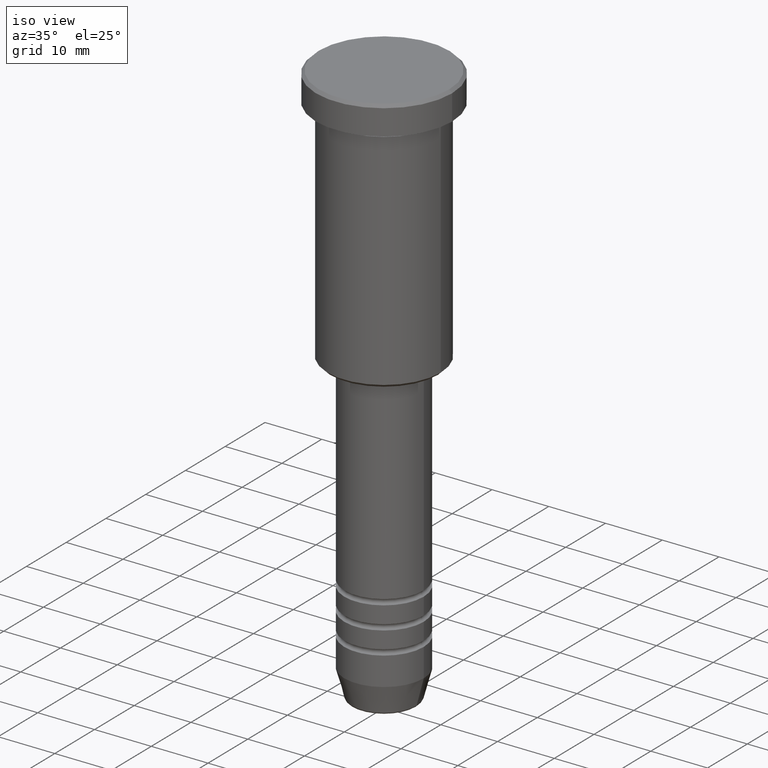
[diagram: clean part render]
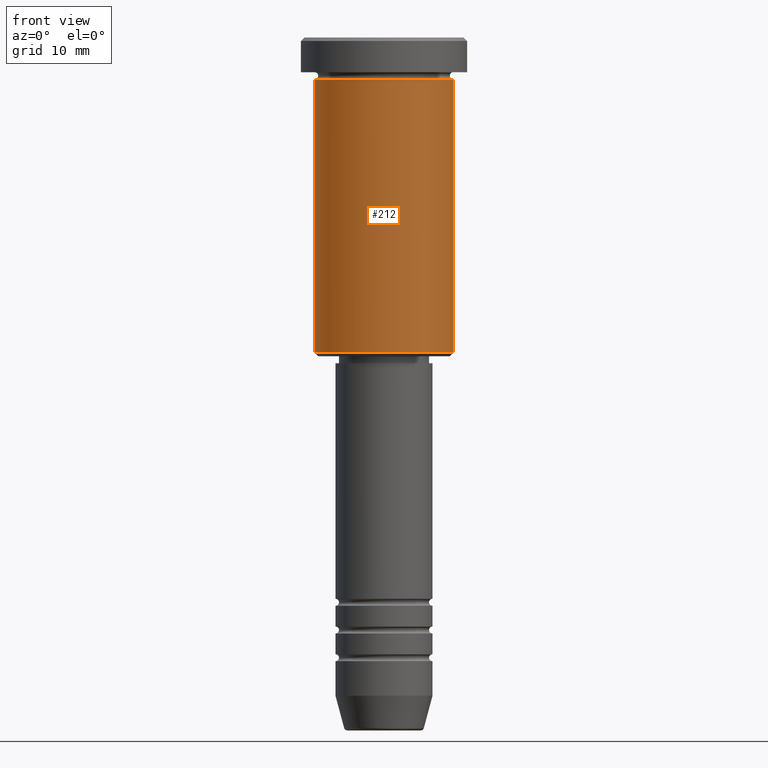
[diagram: tour spotlight — one face highlighted and labeled with its STEP entity id]
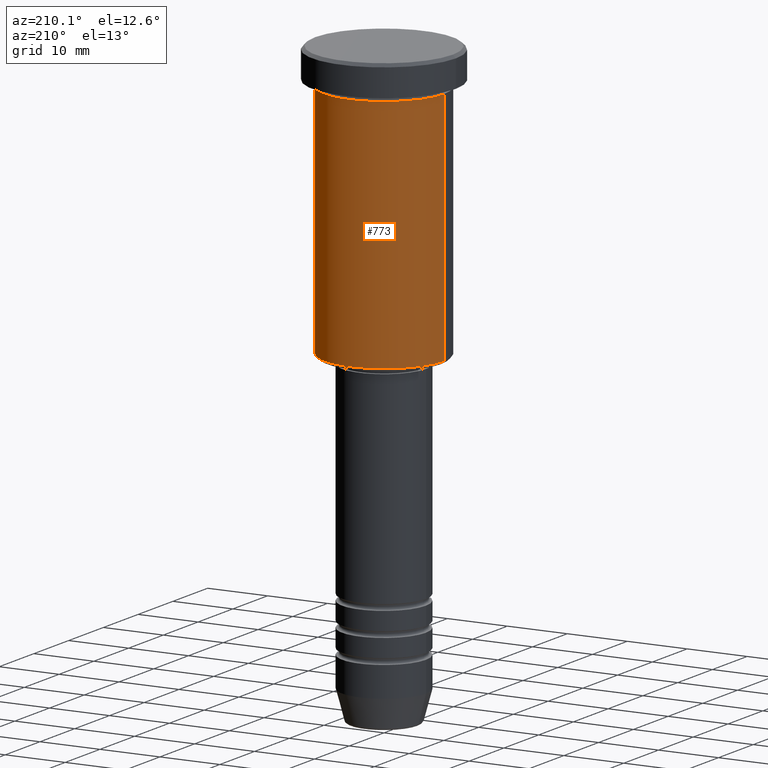
[diagram: tour spotlight — one face highlighted and labeled with its STEP entity id]
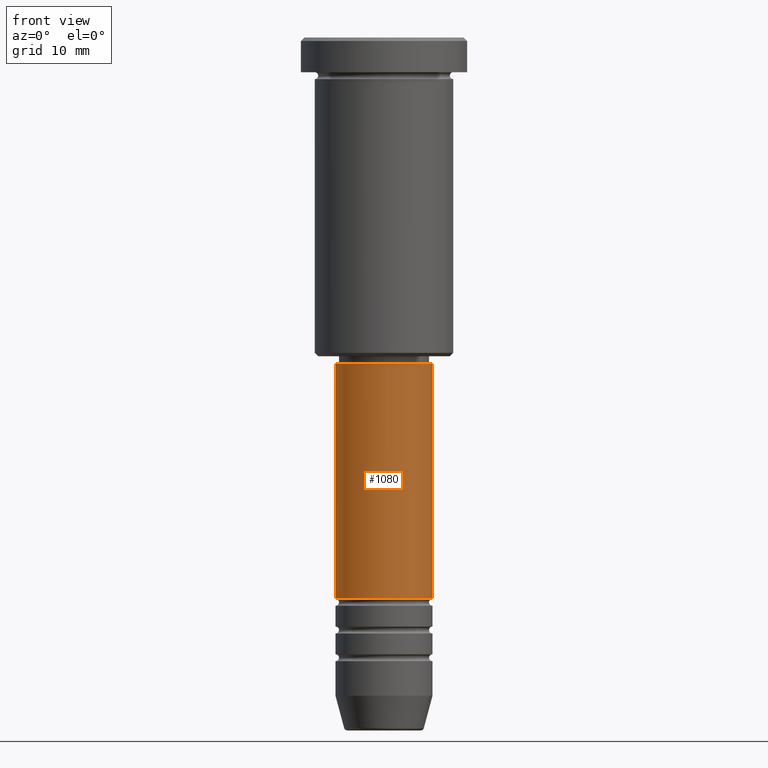
[diagram: tour spotlight — one face highlighted and labeled with its STEP entity id]
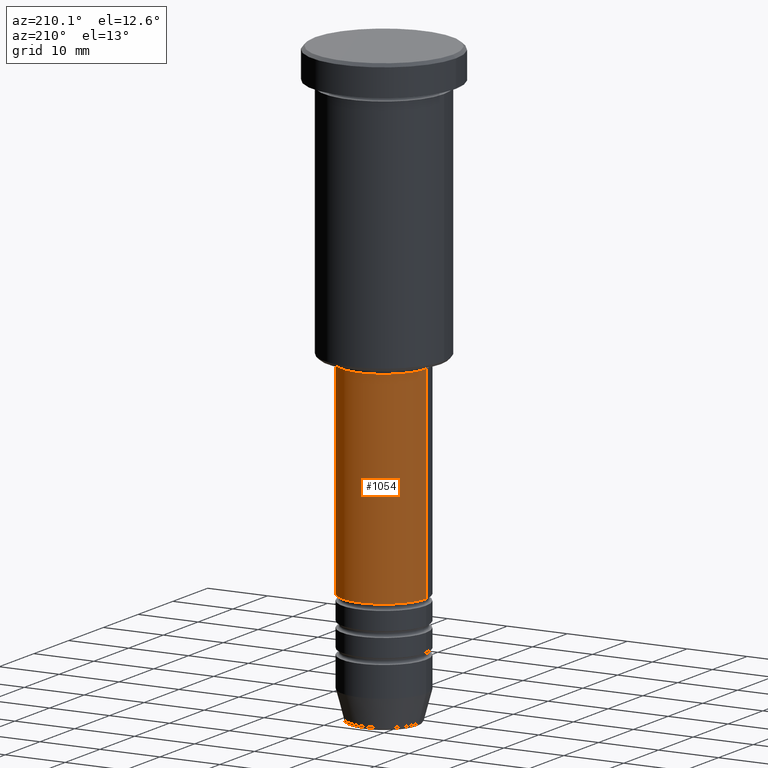
[diagram: tour spotlight — one face highlighted and labeled with its STEP entity id]
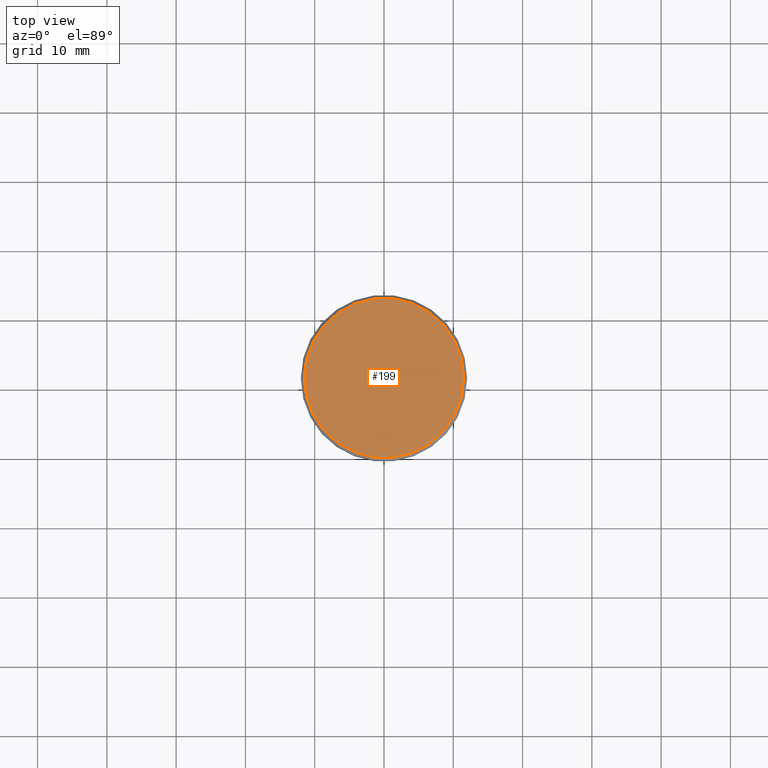
[diagram: tour spotlight — one face highlighted and labeled with its STEP entity id]
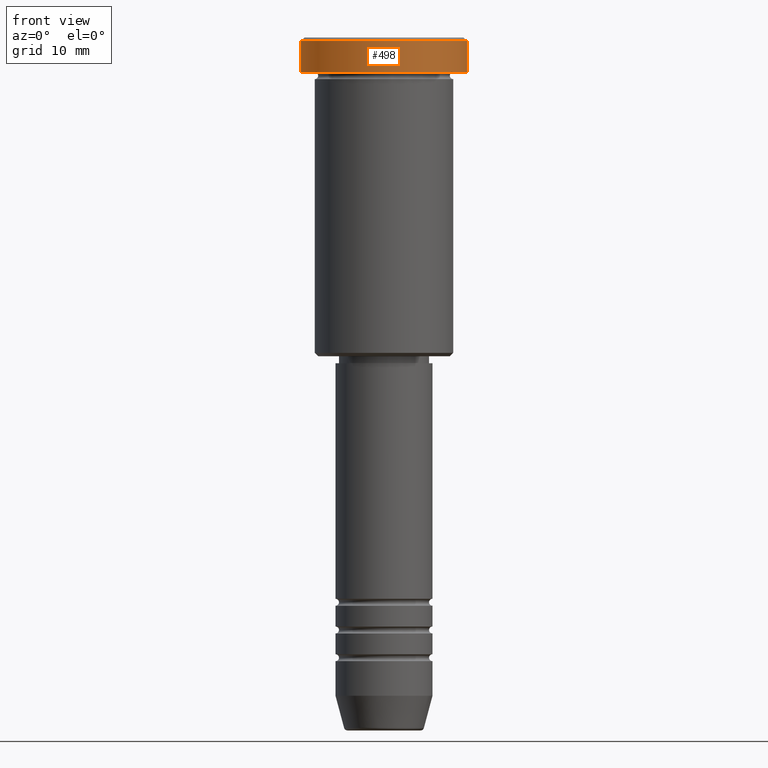
[diagram: tour spotlight — one face highlighted and labeled with its STEP entity id]
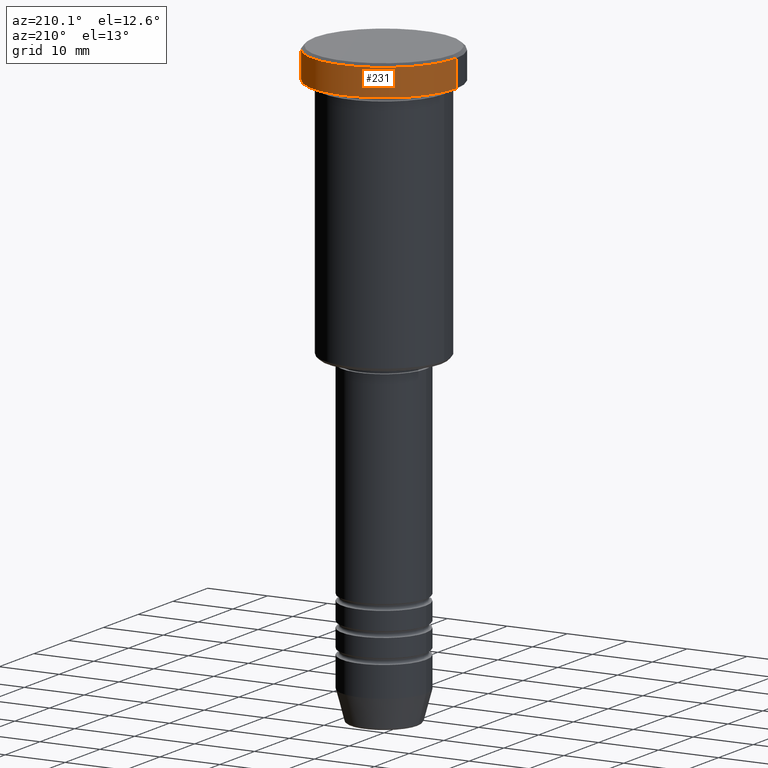
[diagram: tour spotlight — one face highlighted and labeled with its STEP entity id]
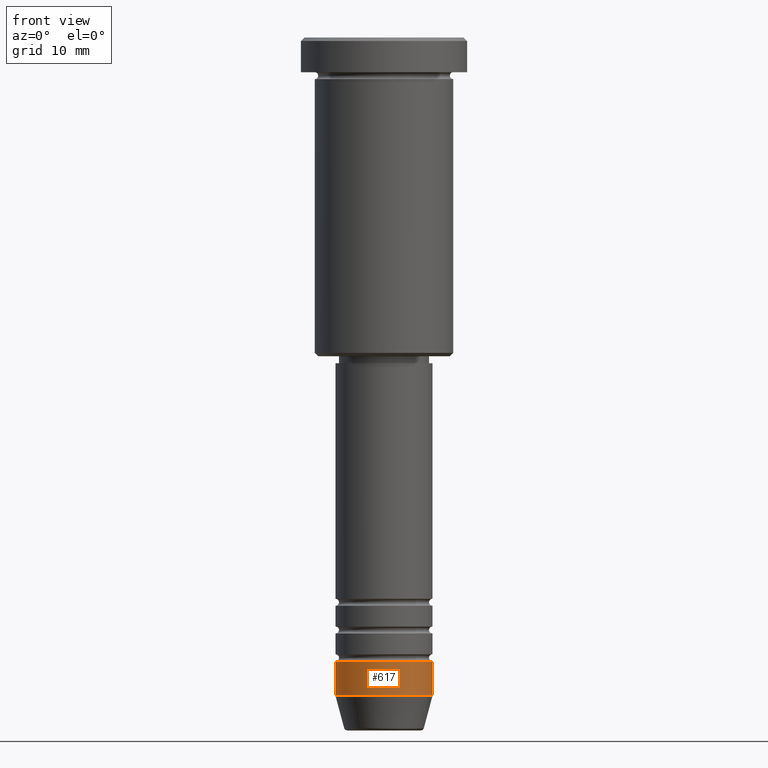
[diagram: tour spotlight — one face highlighted and labeled with its STEP entity id]
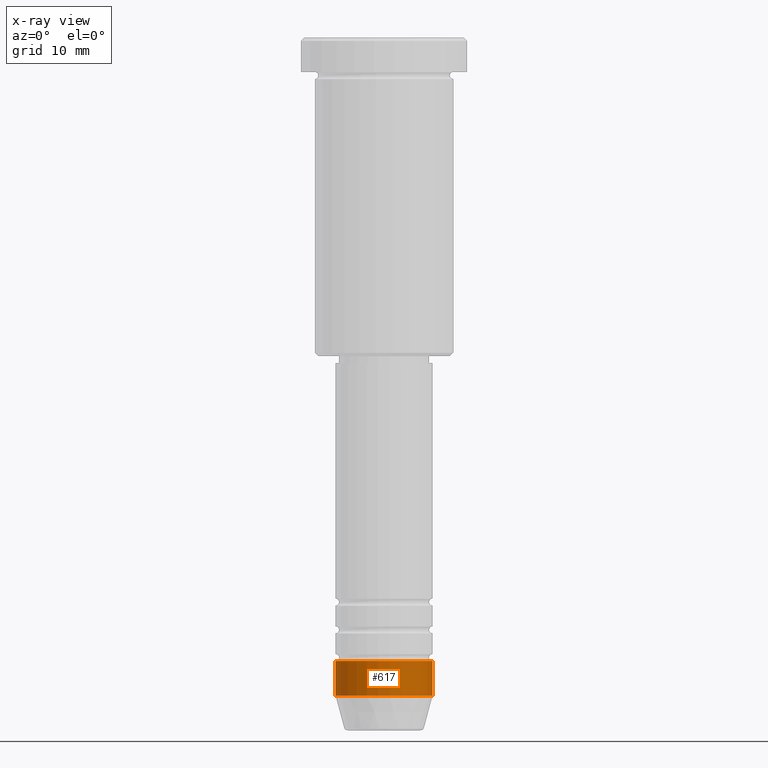
[diagram: x-ray of the same camera — body ghosted, this tour face saturated]
A machine part: a face-by-face anatomy tour. The part has 43 B-rep faces; the first image is the clean iso view, then the 8 largest visible faces are spotlighted one at a time (largest first), each with its STEP entity span.

Face 1 — front view, entity #212. In plain terms, the highlighted cylindrical surface (partial cylindrical patch) has radius 10 mm, axis along (-0, -0, 1).
Definition (entity closure, byte-faithful):
#6 = EDGE_CURVE ( 'NONE', #790, #1040, #321, .T. ) ;
#57 = CIRCLE ( 'NONE', #799, 9.999999999999998224 ) ;
#97 = DIRECTION ( 'NONE',  ( 1.000000000000000000, 0.000000000000000000, 0.000000000000000000 ) ) ;
#103 = AXIS2_PLACEMENT_3D ( 'NONE', #579, #650, #97 ) ;
#147 = VECTOR ( 'NONE', #226, 1000.000000000000000 ) ;
#180 = VERTEX_POINT ( 'NONE', #624 ) ;
#212 = ADVANCED_FACE ( 'NONE', ( #1141 ), #229, .T. ) ;
#226 = DIRECTION ( 'NONE',  ( -0.000000000000000000, -0.000000000000000000, 1.000000000000000000 ) ) ;
#229 = CYLINDRICAL_SURFACE ( 'NONE', #910, 9.999999999999998224 ) ;
#263 = CARTESIAN_POINT ( 'NONE',  ( -10.00000000000000000, 1.224646799147353256E-15, -6.000000000000000000 ) ) ;
#304 = CARTESIAN_POINT ( 'NONE',  ( -9.999999999999998224, 1.224646799147353059E-15, -45.49999999999998579 ) ) ;
#319 = VECTOR ( 'NONE', #530, 1000.000000000000000 ) ;
#321 = LINE ( 'NONE', #327, #147 ) ;
#327 = CARTESIAN_POINT ( 'NONE',  ( -9.999999999999998224, 1.224646799147353059E-15, 0.000000000000000000 ) ) ;
#350 = DIRECTION ( 'NONE',  ( -1.000000000000000000, 0.000000000000000000, 0.000000000000000000 ) ) ;
#385 = ORIENTED_EDGE ( 'NONE', *, *, #584, .F. ) ;
#399 = CARTESIAN_POINT ( 'NONE',  ( 0.000000000000000000, 0.000000000000000000, 0.000000000000000000 ) ) ;
#408 = VERTEX_POINT ( 'NONE', #890 ) ;
#422 = DIRECTION ( 'NONE',  ( -0.000000000000000000, -0.000000000000000000, 1.000000000000000000 ) ) ;
#424 = ORIENTED_EDGE ( 'NONE', *, *, #957, .T. ) ;
#524 = EDGE_LOOP ( 'NONE', ( #555, #424, #639, #385 ) ) ;
#525 = LINE ( 'NONE', #713, #319 ) ;
#530 = DIRECTION ( 'NONE',  ( -0.000000000000000000, -0.000000000000000000, 1.000000000000000000 ) ) ;
#532 = DIRECTION ( 'NONE',  ( -0.000000000000000000, -0.000000000000000000, 1.000000000000000000 ) ) ;
#555 = ORIENTED_EDGE ( 'NONE', *, *, #6, .F. ) ;
#579 = CARTESIAN_POINT ( 'NONE',  ( 0.000000000000000000, 0.000000000000000000, -6.000000000000000000 ) ) ;
#584 = EDGE_CURVE ( 'NONE', #1040, #408, #1047, .T. ) ;
#624 = CARTESIAN_POINT ( 'NONE',  ( 9.999999999999998224, 0.000000000000000000, -45.49999999999998579 ) ) ;
#639 = ORIENTED_EDGE ( 'NONE', *, *, #1037, .T. ) ;
#650 = DIRECTION ( 'NONE',  ( -0.000000000000000000, -0.000000000000000000, 1.000000000000000000 ) ) ;
#713 = CARTESIAN_POINT ( 'NONE',  ( 9.999999999999998224, 0.000000000000000000, 0.000000000000000000 ) ) ;
#790 = VERTEX_POINT ( 'NONE', #304 ) ;
#799 = AXIS2_PLACEMENT_3D ( 'NONE', #903, #532, #350 ) ;
#870 = DIRECTION ( 'NONE',  ( 1.000000000000000000, 0.000000000000000000, 0.000000000000000000 ) ) ;
#890 = CARTESIAN_POINT ( 'NONE',  ( 10.00000000000000000, 0.000000000000000000, -6.000000000000000000 ) ) ;
#903 = CARTESIAN_POINT ( 'NONE',  ( 0.000000000000000000, 0.000000000000000000, -45.49999999999998579 ) ) ;
#910 = AXIS2_PLACEMENT_3D ( 'NONE', #399, #422, #870 ) ;
#957 = EDGE_CURVE ( 'NONE', #790, #180, #57, .T. ) ;
#1037 = EDGE_CURVE ( 'NONE', #180, #408, #525, .T. ) ;
#1040 = VERTEX_POINT ( 'NONE', #263 ) ;
#1047 = CIRCLE ( 'NONE', #103, 10.00000000000000000 ) ;
#1141 = FACE_OUTER_BOUND ( 'NONE', #524, .T. ) ;

Face 2 — auxiliary view, entity #773. In plain terms, the highlighted cylindrical surface (partial cylindrical patch) has radius 10 mm, axis along (-0, -0, 1).
Definition (entity closure, byte-faithful):
#6 = EDGE_CURVE ( 'NONE', #790, #1040, #321, .T. ) ;
#42 = CIRCLE ( 'NONE', #1126, 9.999999999999998224 ) ;
#134 = CIRCLE ( 'NONE', #818, 10.00000000000000000 ) ;
#147 = VECTOR ( 'NONE', #226, 1000.000000000000000 ) ;
#180 = VERTEX_POINT ( 'NONE', #624 ) ;
#226 = DIRECTION ( 'NONE',  ( -0.000000000000000000, -0.000000000000000000, 1.000000000000000000 ) ) ;
#247 = ORIENTED_EDGE ( 'NONE', *, *, #1037, .F. ) ;
#263 = CARTESIAN_POINT ( 'NONE',  ( -10.00000000000000000, 1.224646799147353256E-15, -6.000000000000000000 ) ) ;
#265 = ORIENTED_EDGE ( 'NONE', *, *, #964, .T. ) ;
#281 = CARTESIAN_POINT ( 'NONE',  ( 0.000000000000000000, 0.000000000000000000, -45.49999999999998579 ) ) ;
#304 = CARTESIAN_POINT ( 'NONE',  ( -9.999999999999998224, 1.224646799147353059E-15, -45.49999999999998579 ) ) ;
#319 = VECTOR ( 'NONE', #530, 1000.000000000000000 ) ;
#321 = LINE ( 'NONE', #327, #147 ) ;
#327 = CARTESIAN_POINT ( 'NONE',  ( -9.999999999999998224, 1.224646799147353059E-15, 0.000000000000000000 ) ) ;
#331 = DIRECTION ( 'NONE',  ( -1.000000000000000000, 0.000000000000000000, 0.000000000000000000 ) ) ;
#408 = VERTEX_POINT ( 'NONE', #890 ) ;
#441 = FACE_OUTER_BOUND ( 'NONE', #722, .T. ) ;
#494 = EDGE_CURVE ( 'NONE', #408, #1040, #134, .T. ) ;
#525 = LINE ( 'NONE', #713, #319 ) ;
#530 = DIRECTION ( 'NONE',  ( -0.000000000000000000, -0.000000000000000000, 1.000000000000000000 ) ) ;
#544 = CYLINDRICAL_SURFACE ( 'NONE', #841, 9.999999999999998224 ) ;
#571 = CARTESIAN_POINT ( 'NONE',  ( 0.000000000000000000, 0.000000000000000000, -6.000000000000000000 ) ) ;
#624 = CARTESIAN_POINT ( 'NONE',  ( 9.999999999999998224, 0.000000000000000000, -45.49999999999998579 ) ) ;
#671 = DIRECTION ( 'NONE',  ( -0.000000000000000000, -0.000000000000000000, 1.000000000000000000 ) ) ;
#713 = CARTESIAN_POINT ( 'NONE',  ( 9.999999999999998224, 0.000000000000000000, 0.000000000000000000 ) ) ;
#719 = ORIENTED_EDGE ( 'NONE', *, *, #494, .F. ) ;
#722 = EDGE_LOOP ( 'NONE', ( #265, #734, #719, #247 ) ) ;
#734 = ORIENTED_EDGE ( 'NONE', *, *, #6, .T. ) ;
#770 = DIRECTION ( 'NONE',  ( 1.000000000000000000, 0.000000000000000000, 0.000000000000000000 ) ) ;
#773 = ADVANCED_FACE ( 'NONE', ( #441 ), #544, .T. ) ;
#790 = VERTEX_POINT ( 'NONE', #304 ) ;
#811 = DIRECTION ( 'NONE',  ( 1.000000000000000000, 0.000000000000000000, 0.000000000000000000 ) ) ;
#818 = AXIS2_PLACEMENT_3D ( 'NONE', #571, #671, #770 ) ;
#841 = AXIS2_PLACEMENT_3D ( 'NONE', #915, #896, #811 ) ;
#890 = CARTESIAN_POINT ( 'NONE',  ( 10.00000000000000000, 0.000000000000000000, -6.000000000000000000 ) ) ;
#896 = DIRECTION ( 'NONE',  ( -0.000000000000000000, -0.000000000000000000, 1.000000000000000000 ) ) ;
#915 = CARTESIAN_POINT ( 'NONE',  ( 0.000000000000000000, 0.000000000000000000, 0.000000000000000000 ) ) ;
#964 = EDGE_CURVE ( 'NONE', #180, #790, #42, .T. ) ;
#1037 = EDGE_CURVE ( 'NONE', #180, #408, #525, .T. ) ;
#1040 = VERTEX_POINT ( 'NONE', #263 ) ;
#1114 = DIRECTION ( 'NONE',  ( -0.000000000000000000, -0.000000000000000000, 1.000000000000000000 ) ) ;
#1126 = AXIS2_PLACEMENT_3D ( 'NONE', #281, #1114, #331 ) ;

Face 3 — front view, entity #1080. In plain terms, the highlighted cylindrical surface (partial cylindrical patch) has radius 7 mm, axis along (-0, -0, 1).
Definition (entity closure, byte-faithful):
#23 = CARTESIAN_POINT ( 'NONE',  ( -7.000000000000000888, 8.572527594031474176E-16, -47.00000000000000000 ) ) ;
#30 = AXIS2_PLACEMENT_3D ( 'NONE', #463, #763, #1125 ) ;
#36 = VERTEX_POINT ( 'NONE', #691 ) ;
#125 = ORIENTED_EDGE ( 'NONE', *, *, #608, .T. ) ;
#140 = DIRECTION ( 'NONE',  ( -0.000000000000000000, -0.000000000000000000, 1.000000000000000000 ) ) ;
#164 = LINE ( 'NONE', #252, #280 ) ;
#214 = DIRECTION ( 'NONE',  ( -0.000000000000000000, -0.000000000000000000, 1.000000000000000000 ) ) ;
#241 = ORIENTED_EDGE ( 'NONE', *, *, #928, .F. ) ;
#252 = CARTESIAN_POINT ( 'NONE',  ( -7.000000000000000888, 8.572527594031474176E-16, 0.000000000000000000 ) ) ;
#255 = CARTESIAN_POINT ( 'NONE',  ( 0.000000000000000000, 0.000000000000000000, 0.000000000000000000 ) ) ;
#280 = VECTOR ( 'NONE', #635, 1000.000000000000000 ) ;
#330 = LINE ( 'NONE', #714, #765 ) ;
#341 = CARTESIAN_POINT ( 'NONE',  ( 7.000000000000000888, 0.000000000000000000, -80.99999999999998579 ) ) ;
#403 = CIRCLE ( 'NONE', #30, 7.000000000000000888 ) ;
#463 = CARTESIAN_POINT ( 'NONE',  ( 0.000000000000000000, 0.000000000000000000, -80.99999999999998579 ) ) ;
#518 = CARTESIAN_POINT ( 'NONE',  ( 0.000000000000000000, 0.000000000000000000, -47.00000000000000000 ) ) ;
#603 = VERTEX_POINT ( 'NONE', #23 ) ;
#606 = CARTESIAN_POINT ( 'NONE',  ( 7.000000000000000888, 0.000000000000000000, -47.00000000000000000 ) ) ;
#608 = EDGE_CURVE ( 'NONE', #36, #918, #403, .T. ) ;
#619 = FACE_OUTER_BOUND ( 'NONE', #1177, .T. ) ;
#631 = DIRECTION ( 'NONE',  ( -0.000000000000000000, -0.000000000000000000, 1.000000000000000000 ) ) ;
#635 = DIRECTION ( 'NONE',  ( -0.000000000000000000, -0.000000000000000000, 1.000000000000000000 ) ) ;
#691 = CARTESIAN_POINT ( 'NONE',  ( -7.000000000000000888, 8.572527594031474176E-16, -80.99999999999998579 ) ) ;
#714 = CARTESIAN_POINT ( 'NONE',  ( 7.000000000000000888, 0.000000000000000000, 0.000000000000000000 ) ) ;
#731 = EDGE_CURVE ( 'NONE', #603, #832, #969, .T. ) ;
#760 = EDGE_CURVE ( 'NONE', #918, #832, #330, .T. ) ;
#763 = DIRECTION ( 'NONE',  ( -0.000000000000000000, -0.000000000000000000, 1.000000000000000000 ) ) ;
#765 = VECTOR ( 'NONE', #214, 1000.000000000000000 ) ;
#832 = VERTEX_POINT ( 'NONE', #606 ) ;
#874 = AXIS2_PLACEMENT_3D ( 'NONE', #518, #140, #1059 ) ;
#889 = AXIS2_PLACEMENT_3D ( 'NONE', #255, #631, #1170 ) ;
#918 = VERTEX_POINT ( 'NONE', #341 ) ;
#928 = EDGE_CURVE ( 'NONE', #36, #603, #164, .T. ) ;
#969 = CIRCLE ( 'NONE', #874, 7.000000000000000888 ) ;
#1016 = ORIENTED_EDGE ( 'NONE', *, *, #731, .F. ) ;
#1059 = DIRECTION ( 'NONE',  ( 1.000000000000000000, 0.000000000000000000, 0.000000000000000000 ) ) ;
#1076 = CYLINDRICAL_SURFACE ( 'NONE', #889, 7.000000000000000888 ) ;
#1080 = ADVANCED_FACE ( 'NONE', ( #619 ), #1076, .T. ) ;
#1113 = ORIENTED_EDGE ( 'NONE', *, *, #760, .T. ) ;
#1125 = DIRECTION ( 'NONE',  ( 1.000000000000000000, 0.000000000000000000, 0.000000000000000000 ) ) ;
#1170 = DIRECTION ( 'NONE',  ( 1.000000000000000000, 0.000000000000000000, 0.000000000000000000 ) ) ;
#1177 = EDGE_LOOP ( 'NONE', ( #241, #125, #1113, #1016 ) ) ;

Face 4 — auxiliary view, entity #1054. In plain terms, the highlighted cylindrical surface (partial cylindrical patch) has radius 7 mm, axis along (-0, -0, 1).
Definition (entity closure, byte-faithful):
#23 = CARTESIAN_POINT ( 'NONE',  ( -7.000000000000000888, 8.572527594031474176E-16, -47.00000000000000000 ) ) ;
#28 = CIRCLE ( 'NONE', #464, 7.000000000000000888 ) ;
#36 = VERTEX_POINT ( 'NONE', #691 ) ;
#87 = CARTESIAN_POINT ( 'NONE',  ( 0.000000000000000000, 0.000000000000000000, -47.00000000000000000 ) ) ;
#164 = LINE ( 'NONE', #252, #280 ) ;
#174 = ORIENTED_EDGE ( 'NONE', *, *, #928, .T. ) ;
#214 = DIRECTION ( 'NONE',  ( -0.000000000000000000, -0.000000000000000000, 1.000000000000000000 ) ) ;
#252 = CARTESIAN_POINT ( 'NONE',  ( -7.000000000000000888, 8.572527594031474176E-16, 0.000000000000000000 ) ) ;
#280 = VECTOR ( 'NONE', #635, 1000.000000000000000 ) ;
#297 = AXIS2_PLACEMENT_3D ( 'NONE', #753, #758, #1129 ) ;
#330 = LINE ( 'NONE', #714, #765 ) ;
#341 = CARTESIAN_POINT ( 'NONE',  ( 7.000000000000000888, 0.000000000000000000, -80.99999999999998579 ) ) ;
#354 = FACE_OUTER_BOUND ( 'NONE', #1182, .T. ) ;
#356 = DIRECTION ( 'NONE',  ( 1.000000000000000000, 0.000000000000000000, 0.000000000000000000 ) ) ;
#426 = EDGE_CURVE ( 'NONE', #832, #603, #28, .T. ) ;
#443 = AXIS2_PLACEMENT_3D ( 'NONE', #1097, #720, #1083 ) ;
#449 = DIRECTION ( 'NONE',  ( -0.000000000000000000, -0.000000000000000000, 1.000000000000000000 ) ) ;
#464 = AXIS2_PLACEMENT_3D ( 'NONE', #87, #449, #356 ) ;
#545 = CIRCLE ( 'NONE', #297, 7.000000000000000888 ) ;
#562 = ORIENTED_EDGE ( 'NONE', *, *, #675, .T. ) ;
#603 = VERTEX_POINT ( 'NONE', #23 ) ;
#606 = CARTESIAN_POINT ( 'NONE',  ( 7.000000000000000888, 0.000000000000000000, -47.00000000000000000 ) ) ;
#635 = DIRECTION ( 'NONE',  ( -0.000000000000000000, -0.000000000000000000, 1.000000000000000000 ) ) ;
#675 = EDGE_CURVE ( 'NONE', #918, #36, #545, .T. ) ;
#691 = CARTESIAN_POINT ( 'NONE',  ( -7.000000000000000888, 8.572527594031474176E-16, -80.99999999999998579 ) ) ;
#714 = CARTESIAN_POINT ( 'NONE',  ( 7.000000000000000888, 0.000000000000000000, 0.000000000000000000 ) ) ;
#720 = DIRECTION ( 'NONE',  ( -0.000000000000000000, -0.000000000000000000, 1.000000000000000000 ) ) ;
#753 = CARTESIAN_POINT ( 'NONE',  ( 0.000000000000000000, 0.000000000000000000, -80.99999999999998579 ) ) ;
#758 = DIRECTION ( 'NONE',  ( -0.000000000000000000, -0.000000000000000000, 1.000000000000000000 ) ) ;
#760 = EDGE_CURVE ( 'NONE', #918, #832, #330, .T. ) ;
#765 = VECTOR ( 'NONE', #214, 1000.000000000000000 ) ;
#831 = CYLINDRICAL_SURFACE ( 'NONE', #443, 7.000000000000000888 ) ;
#832 = VERTEX_POINT ( 'NONE', #606 ) ;
#918 = VERTEX_POINT ( 'NONE', #341 ) ;
#920 = ORIENTED_EDGE ( 'NONE', *, *, #760, .F. ) ;
#928 = EDGE_CURVE ( 'NONE', #36, #603, #164, .T. ) ;
#1008 = ORIENTED_EDGE ( 'NONE', *, *, #426, .F. ) ;
#1054 = ADVANCED_FACE ( 'NONE', ( #354 ), #831, .T. ) ;
#1083 = DIRECTION ( 'NONE',  ( 1.000000000000000000, 0.000000000000000000, 0.000000000000000000 ) ) ;
#1097 = CARTESIAN_POINT ( 'NONE',  ( 0.000000000000000000, 0.000000000000000000, 0.000000000000000000 ) ) ;
#1129 = DIRECTION ( 'NONE',  ( 1.000000000000000000, 0.000000000000000000, 0.000000000000000000 ) ) ;
#1182 = EDGE_LOOP ( 'NONE', ( #562, #174, #1008, #920 ) ) ;

Face 5 — top view, entity #199. In plain terms, the highlighted planar face has unit normal (0, -0, 1).
Definition (entity closure, byte-faithful):
#17 = DIRECTION ( 'NONE',  ( 0.000000000000000000, -0.000000000000000000, 1.000000000000000000 ) ) ;
#22 = ORIENTED_EDGE ( 'NONE', *, *, #78, .T. ) ;
#25 = CARTESIAN_POINT ( 'NONE',  ( 0.000000000000000000, 0.000000000000000000, 0.000000000000000000 ) ) ;
#70 = DIRECTION ( 'NONE',  ( 1.000000000000000000, 0.000000000000000000, 0.000000000000000000 ) ) ;
#78 = EDGE_CURVE ( 'NONE', #750, #1075, #838, .T. ) ;
#158 = CARTESIAN_POINT ( 'NONE',  ( 0.000000000000000000, 0.000000000000000000, 0.000000000000000000 ) ) ;
#197 = EDGE_LOOP ( 'NONE', ( #1127, #22 ) ) ;
#199 = ADVANCED_FACE ( 'NONE', ( #275 ), #291, .T. ) ;
#275 = FACE_OUTER_BOUND ( 'NONE', #197, .T. ) ;
#291 = PLANE ( 'NONE',  #947 ) ;
#488 = AXIS2_PLACEMENT_3D ( 'NONE', #1035, #1121, #1045 ) ;
#626 = CARTESIAN_POINT ( 'NONE',  ( -11.49999999999998046, 0.000000000000000000, 0.000000000000000000 ) ) ;
#687 = CARTESIAN_POINT ( 'NONE',  ( 11.49999999999998046, 1.438959988998138582E-15, 0.000000000000000000 ) ) ;
#750 = VERTEX_POINT ( 'NONE', #687 ) ;
#813 = DIRECTION ( 'NONE',  ( -0.000000000000000000, -0.000000000000000000, 1.000000000000000000 ) ) ;
#838 = CIRCLE ( 'NONE', #965, 11.49999999999998046 ) ;
#861 = CIRCLE ( 'NONE', #488, 11.49999999999998046 ) ;
#947 = AXIS2_PLACEMENT_3D ( 'NONE', #25, #17, #1052 ) ;
#965 = AXIS2_PLACEMENT_3D ( 'NONE', #158, #813, #70 ) ;
#1035 = CARTESIAN_POINT ( 'NONE',  ( 0.000000000000000000, 0.000000000000000000, 0.000000000000000000 ) ) ;
#1045 = DIRECTION ( 'NONE',  ( 1.000000000000000000, 0.000000000000000000, 0.000000000000000000 ) ) ;
#1052 = DIRECTION ( 'NONE',  ( 1.000000000000000000, 0.000000000000000000, 0.000000000000000000 ) ) ;
#1075 = VERTEX_POINT ( 'NONE', #626 ) ;
#1121 = DIRECTION ( 'NONE',  ( -0.000000000000000000, -0.000000000000000000, 1.000000000000000000 ) ) ;
#1127 = ORIENTED_EDGE ( 'NONE', *, *, #1150, .T. ) ;
#1150 = EDGE_CURVE ( 'NONE', #1075, #750, #861, .T. ) ;

Face 6 — front view, entity #498. In plain terms, the highlighted cylindrical surface (partial cylindrical patch) has radius 12 mm, axis along (-0, -0, 1).
Definition (entity closure, byte-faithful):
#7 = CARTESIAN_POINT ( 'NONE',  ( 12.00000000000000000, 0.000000000000000000, -5.000000000000000000 ) ) ;
#20 = DIRECTION ( 'NONE',  ( 1.000000000000000000, 0.000000000000000000, 0.000000000000000000 ) ) ;
#21 = EDGE_CURVE ( 'NONE', #1174, #436, #27, .T. ) ;
#27 = CIRCLE ( 'NONE', #1065, 12.00000000000000000 ) ;
#89 = VERTEX_POINT ( 'NONE', #891 ) ;
#91 = ORIENTED_EDGE ( 'NONE', *, *, #642, .T. ) ;
#117 = CIRCLE ( 'NONE', #782, 12.00000000000000000 ) ;
#119 = LINE ( 'NONE', #266, #702 ) ;
#148 = VECTOR ( 'NONE', #599, 1000.000000000000000 ) ;
#183 = FACE_OUTER_BOUND ( 'NONE', #859, .T. ) ;
#202 = CARTESIAN_POINT ( 'NONE',  ( 0.000000000000000000, 0.000000000000000000, 0.000000000000000000 ) ) ;
#218 = DIRECTION ( 'NONE',  ( 1.000000000000000000, 0.000000000000000000, 0.000000000000000000 ) ) ;
#266 = CARTESIAN_POINT ( 'NONE',  ( -12.00000000000000000, 1.469576158976823947E-15, 0.000000000000000000 ) ) ;
#267 = EDGE_CURVE ( 'NONE', #436, #397, #706, .T. ) ;
#282 = DIRECTION ( 'NONE',  ( -0.000000000000000000, -0.000000000000000000, 1.000000000000000000 ) ) ;
#303 = DIRECTION ( 'NONE',  ( -0.000000000000000000, -0.000000000000000000, 1.000000000000000000 ) ) ;
#383 = DIRECTION ( 'NONE',  ( 1.000000000000000000, 0.000000000000000000, 0.000000000000000000 ) ) ;
#393 = CARTESIAN_POINT ( 'NONE',  ( 0.000000000000000000, 0.000000000000000000, -0.5000000000000196509 ) ) ;
#397 = VERTEX_POINT ( 'NONE', #1092 ) ;
#436 = VERTEX_POINT ( 'NONE', #7 ) ;
#498 = ADVANCED_FACE ( 'NONE', ( #183 ), #924, .T. ) ;
#542 = AXIS2_PLACEMENT_3D ( 'NONE', #202, #282, #383 ) ;
#570 = EDGE_CURVE ( 'NONE', #1174, #89, #119, .T. ) ;
#580 = DIRECTION ( 'NONE',  ( 0.000000000000000000, 0.000000000000000000, -1.000000000000000000 ) ) ;
#599 = DIRECTION ( 'NONE',  ( -0.000000000000000000, -0.000000000000000000, 1.000000000000000000 ) ) ;
#609 = CARTESIAN_POINT ( 'NONE',  ( 12.00000000000000000, 0.000000000000000000, 0.000000000000000000 ) ) ;
#642 = EDGE_CURVE ( 'NONE', #397, #89, #117, .T. ) ;
#702 = VECTOR ( 'NONE', #851, 1000.000000000000000 ) ;
#706 = LINE ( 'NONE', #609, #148 ) ;
#762 = CARTESIAN_POINT ( 'NONE',  ( -12.00000000000000000, 1.469576158976823947E-15, -5.000000000000000000 ) ) ;
#782 = AXIS2_PLACEMENT_3D ( 'NONE', #393, #580, #20 ) ;
#835 = ORIENTED_EDGE ( 'NONE', *, *, #267, .T. ) ;
#846 = ORIENTED_EDGE ( 'NONE', *, *, #21, .T. ) ;
#851 = DIRECTION ( 'NONE',  ( -0.000000000000000000, -0.000000000000000000, 1.000000000000000000 ) ) ;
#859 = EDGE_LOOP ( 'NONE', ( #925, #846, #835, #91 ) ) ;
#891 = CARTESIAN_POINT ( 'NONE',  ( -12.00000000000000000, 1.469576158976823947E-15, -0.5000000000000196509 ) ) ;
#924 = CYLINDRICAL_SURFACE ( 'NONE', #542, 12.00000000000000000 ) ;
#925 = ORIENTED_EDGE ( 'NONE', *, *, #570, .F. ) ;
#962 = CARTESIAN_POINT ( 'NONE',  ( 0.000000000000000000, 0.000000000000000000, -5.000000000000000000 ) ) ;
#1065 = AXIS2_PLACEMENT_3D ( 'NONE', #962, #303, #218 ) ;
#1092 = CARTESIAN_POINT ( 'NONE',  ( 12.00000000000000000, 0.000000000000000000, -0.5000000000000196509 ) ) ;
#1174 = VERTEX_POINT ( 'NONE', #762 ) ;

Face 7 — auxiliary view, entity #231. In plain terms, the highlighted cylindrical surface (partial cylindrical patch) has radius 12 mm, axis along (-0, -0, 1).
Definition (entity closure, byte-faithful):
#7 = CARTESIAN_POINT ( 'NONE',  ( 12.00000000000000000, 0.000000000000000000, -5.000000000000000000 ) ) ;
#61 = EDGE_CURVE ( 'NONE', #436, #1174, #869, .T. ) ;
#89 = VERTEX_POINT ( 'NONE', #891 ) ;
#119 = LINE ( 'NONE', #266, #702 ) ;
#148 = VECTOR ( 'NONE', #599, 1000.000000000000000 ) ;
#196 = DIRECTION ( 'NONE',  ( 0.000000000000000000, 0.000000000000000000, -1.000000000000000000 ) ) ;
#231 = ADVANCED_FACE ( 'NONE', ( #1154 ), #1161, .T. ) ;
#244 = ORIENTED_EDGE ( 'NONE', *, *, #570, .T. ) ;
#266 = CARTESIAN_POINT ( 'NONE',  ( -12.00000000000000000, 1.469576158976823947E-15, 0.000000000000000000 ) ) ;
#267 = EDGE_CURVE ( 'NONE', #436, #397, #706, .T. ) ;
#307 = ORIENTED_EDGE ( 'NONE', *, *, #598, .T. ) ;
#316 = AXIS2_PLACEMENT_3D ( 'NONE', #689, #681, #499 ) ;
#396 = EDGE_LOOP ( 'NONE', ( #669, #244, #307, #944 ) ) ;
#397 = VERTEX_POINT ( 'NONE', #1092 ) ;
#436 = VERTEX_POINT ( 'NONE', #7 ) ;
#458 = DIRECTION ( 'NONE',  ( 1.000000000000000000, 0.000000000000000000, 0.000000000000000000 ) ) ;
#499 = DIRECTION ( 'NONE',  ( 1.000000000000000000, 0.000000000000000000, 0.000000000000000000 ) ) ;
#523 = CARTESIAN_POINT ( 'NONE',  ( 0.000000000000000000, 0.000000000000000000, -5.000000000000000000 ) ) ;
#570 = EDGE_CURVE ( 'NONE', #1174, #89, #119, .T. ) ;
#598 = EDGE_CURVE ( 'NONE', #89, #397, #643, .T. ) ;
#599 = DIRECTION ( 'NONE',  ( -0.000000000000000000, -0.000000000000000000, 1.000000000000000000 ) ) ;
#609 = CARTESIAN_POINT ( 'NONE',  ( 12.00000000000000000, 0.000000000000000000, 0.000000000000000000 ) ) ;
#643 = CIRCLE ( 'NONE', #1068, 12.00000000000000000 ) ;
#669 = ORIENTED_EDGE ( 'NONE', *, *, #61, .T. ) ;
#681 = DIRECTION ( 'NONE',  ( -0.000000000000000000, -0.000000000000000000, 1.000000000000000000 ) ) ;
#689 = CARTESIAN_POINT ( 'NONE',  ( 0.000000000000000000, 0.000000000000000000, 0.000000000000000000 ) ) ;
#702 = VECTOR ( 'NONE', #851, 1000.000000000000000 ) ;
#706 = LINE ( 'NONE', #609, #148 ) ;
#762 = CARTESIAN_POINT ( 'NONE',  ( -12.00000000000000000, 1.469576158976823947E-15, -5.000000000000000000 ) ) ;
#777 = AXIS2_PLACEMENT_3D ( 'NONE', #523, #1110, #458 ) ;
#851 = DIRECTION ( 'NONE',  ( -0.000000000000000000, -0.000000000000000000, 1.000000000000000000 ) ) ;
#869 = CIRCLE ( 'NONE', #777, 12.00000000000000000 ) ;
#891 = CARTESIAN_POINT ( 'NONE',  ( -12.00000000000000000, 1.469576158976823947E-15, -0.5000000000000196509 ) ) ;
#944 = ORIENTED_EDGE ( 'NONE', *, *, #267, .F. ) ;
#949 = CARTESIAN_POINT ( 'NONE',  ( 0.000000000000000000, 0.000000000000000000, -0.5000000000000196509 ) ) ;
#1038 = DIRECTION ( 'NONE',  ( 1.000000000000000000, 0.000000000000000000, 0.000000000000000000 ) ) ;
#1068 = AXIS2_PLACEMENT_3D ( 'NONE', #949, #196, #1038 ) ;
#1092 = CARTESIAN_POINT ( 'NONE',  ( 12.00000000000000000, 0.000000000000000000, -0.5000000000000196509 ) ) ;
#1110 = DIRECTION ( 'NONE',  ( -0.000000000000000000, -0.000000000000000000, 1.000000000000000000 ) ) ;
#1154 = FACE_OUTER_BOUND ( 'NONE', #396, .T. ) ;
#1161 = CYLINDRICAL_SURFACE ( 'NONE', #316, 12.00000000000000000 ) ;
#1174 = VERTEX_POINT ( 'NONE', #762 ) ;

Face 8 — front view, entity #617. An x-ray twin of the same camera follows (body ghosted, this face saturated) — the face is partly hidden behind the body. In plain terms, the highlighted cylindrical surface (partial cylindrical patch) has radius 7 mm, axis along (-0, -0, 1).
Definition (entity closure, byte-faithful):
#9 = VERTEX_POINT ( 'NONE', #980 ) ;
#16 = CARTESIAN_POINT ( 'NONE',  ( 0.000000000000000000, 0.000000000000000000, 0.000000000000000000 ) ) ;
#63 = DIRECTION ( 'NONE',  ( 1.000000000000000000, 0.000000000000000000, 0.000000000000000000 ) ) ;
#73 = CARTESIAN_POINT ( 'NONE',  ( 7.000000000000000888, 0.000000000000000000, -95.00000000000000000 ) ) ;
#122 = LINE ( 'NONE', #310, #748 ) ;
#133 = EDGE_CURVE ( 'NONE', #9, #567, #1029, .T. ) ;
#145 = EDGE_CURVE ( 'NONE', #755, #9, #994, .T. ) ;
#240 = CARTESIAN_POINT ( 'NONE',  ( -7.000000000000000888, 8.572527594031474176E-16, 0.000000000000000000 ) ) ;
#249 = ORIENTED_EDGE ( 'NONE', *, *, #852, .T. ) ;
#310 = CARTESIAN_POINT ( 'NONE',  ( 7.000000000000000888, 0.000000000000000000, 0.000000000000000000 ) ) ;
#317 = AXIS2_PLACEMENT_3D ( 'NONE', #404, #680, #784 ) ;
#372 = DIRECTION ( 'NONE',  ( -0.000000000000000000, -0.000000000000000000, 1.000000000000000000 ) ) ;
#404 = CARTESIAN_POINT ( 'NONE',  ( 0.000000000000000000, 0.000000000000000000, -95.00000000000000000 ) ) ;
#429 = DIRECTION ( 'NONE',  ( -0.000000000000000000, -0.000000000000000000, 1.000000000000000000 ) ) ;
#439 = AXIS2_PLACEMENT_3D ( 'NONE', #728, #1018, #63 ) ;
#480 = EDGE_LOOP ( 'NONE', ( #853, #249, #627, #683 ) ) ;
#481 = CYLINDRICAL_SURFACE ( 'NONE', #566, 7.000000000000000888 ) ;
#490 = DIRECTION ( 'NONE',  ( -0.000000000000000000, -0.000000000000000000, 1.000000000000000000 ) ) ;
#566 = AXIS2_PLACEMENT_3D ( 'NONE', #16, #490, #877 ) ;
#567 = VERTEX_POINT ( 'NONE', #842 ) ;
#602 = VECTOR ( 'NONE', #429, 1000.000000000000000 ) ;
#617 = ADVANCED_FACE ( 'NONE', ( #942 ), #481, .T. ) ;
#627 = ORIENTED_EDGE ( 'NONE', *, *, #990, .T. ) ;
#680 = DIRECTION ( 'NONE',  ( -0.000000000000000000, -0.000000000000000000, 1.000000000000000000 ) ) ;
#683 = ORIENTED_EDGE ( 'NONE', *, *, #133, .F. ) ;
#728 = CARTESIAN_POINT ( 'NONE',  ( 0.000000000000000000, 0.000000000000000000, -90.00000000000000000 ) ) ;
#748 = VECTOR ( 'NONE', #372, 1000.000000000000000 ) ;
#755 = VERTEX_POINT ( 'NONE', #972 ) ;
#784 = DIRECTION ( 'NONE',  ( 1.000000000000000000, 0.000000000000000000, 0.000000000000000000 ) ) ;
#842 = CARTESIAN_POINT ( 'NONE',  ( 7.000000000000000000, 0.000000000000000000, -90.00000000000000000 ) ) ;
#852 = EDGE_CURVE ( 'NONE', #755, #1049, #858, .T. ) ;
#853 = ORIENTED_EDGE ( 'NONE', *, *, #145, .F. ) ;
#858 = CIRCLE ( 'NONE', #317, 7.000000000000000888 ) ;
#877 = DIRECTION ( 'NONE',  ( 1.000000000000000000, 0.000000000000000000, 0.000000000000000000 ) ) ;
#942 = FACE_OUTER_BOUND ( 'NONE', #480, .T. ) ;
#972 = CARTESIAN_POINT ( 'NONE',  ( -7.000000000000000888, 8.572527594031474176E-16, -95.00000000000000000 ) ) ;
#980 = CARTESIAN_POINT ( 'NONE',  ( -7.000000000000000000, 8.572527594031473190E-16, -90.00000000000000000 ) ) ;
#990 = EDGE_CURVE ( 'NONE', #1049, #567, #122, .T. ) ;
#994 = LINE ( 'NONE', #240, #602 ) ;
#1018 = DIRECTION ( 'NONE',  ( -0.000000000000000000, -0.000000000000000000, 1.000000000000000000 ) ) ;
#1029 = CIRCLE ( 'NONE', #439, 7.000000000000000000 ) ;
#1049 = VERTEX_POINT ( 'NONE', #73 ) ;